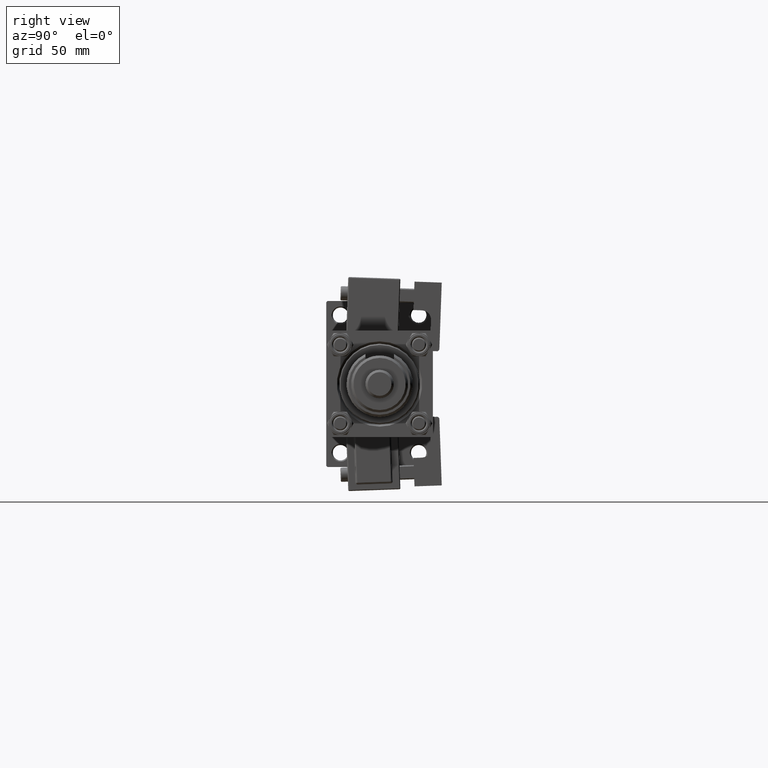
[diagram: clean part render]
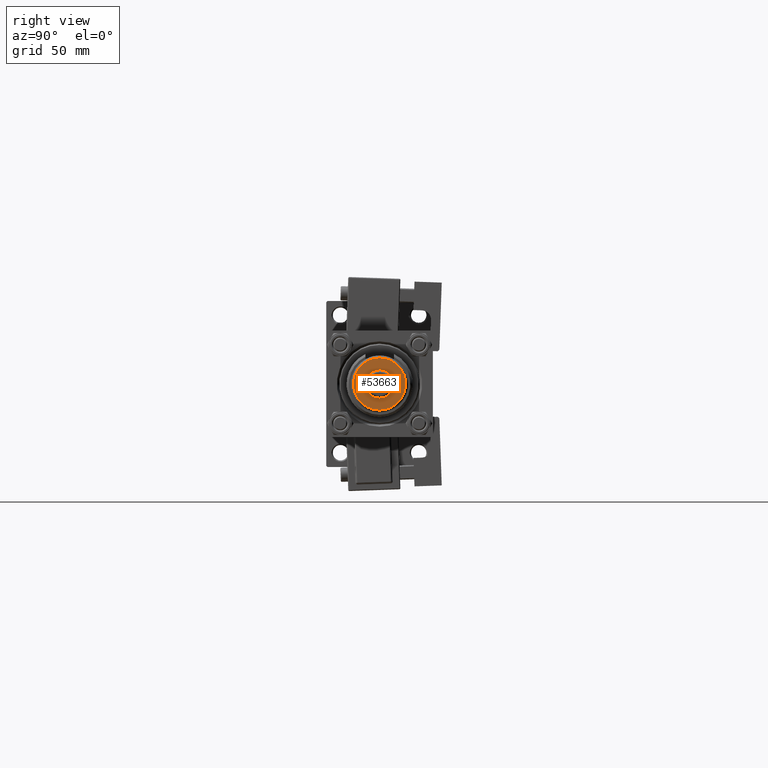
[diagram: same view with one face highlighted and labeled with its STEP entity id]
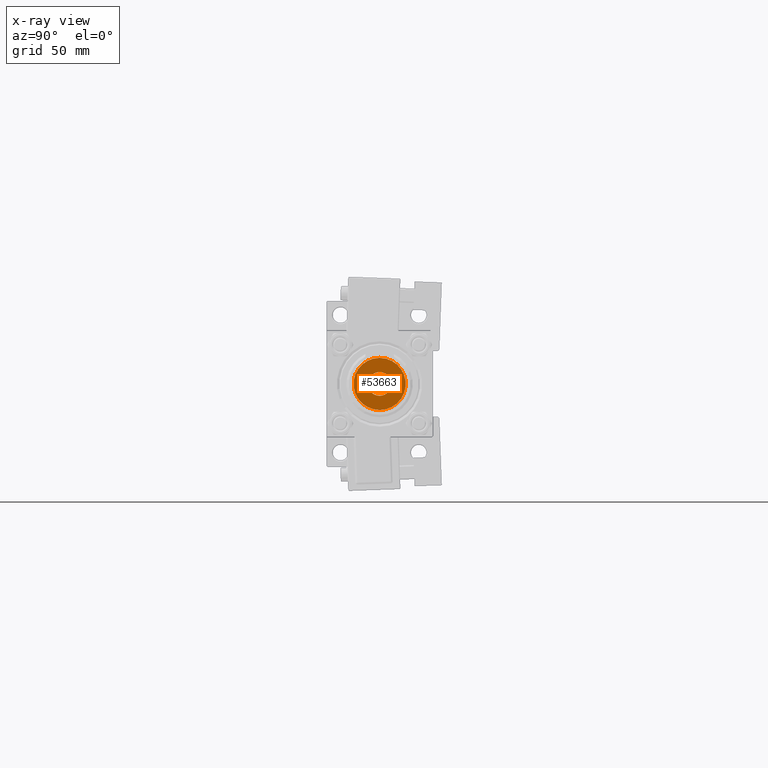
[diagram: x-ray of the same camera — body ghosted, the highlighted face saturated]
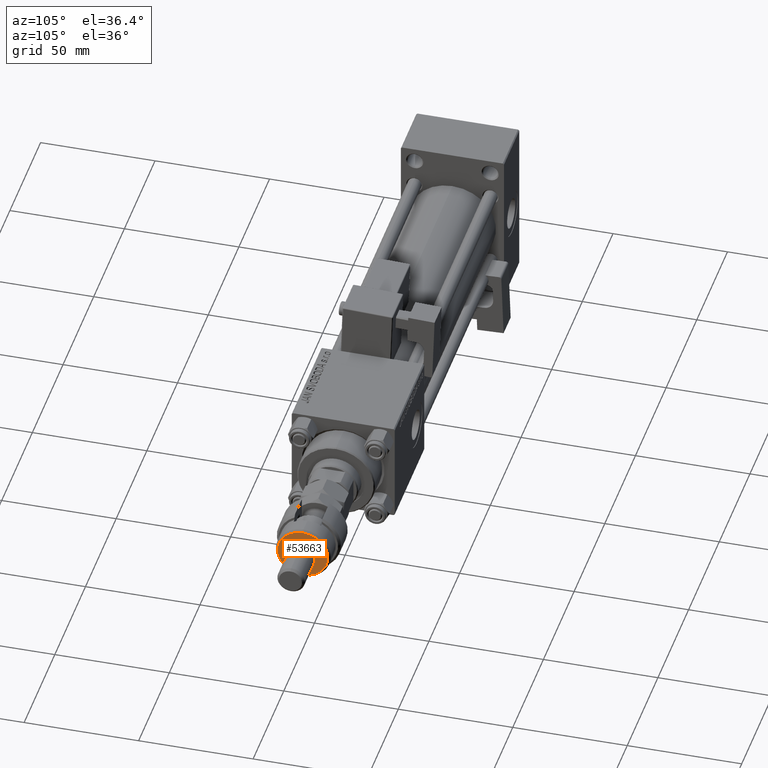
[diagram: same view with one face highlighted and labeled with its STEP entity id]
A machine part, right view. The second image highlights one B-rep face of the part: STEP entity #53663.
The next image is the same camera in x-ray: the body ghosted, the highlighted face saturated — about 0% of this face is hidden behind the body in this view.
A second angle (auxiliary view) of the same face is appended — the face is thin or edge-on in the first view.
In plain terms, the highlighted planar face has unit normal (1, 0, 0).
Its self-contained STEP definition (entity closure, byte-faithful):
#763 = EDGE_LOOP ( 'NONE', ( #34155, #38771 ) ) ;
#5016 = AXIS2_PLACEMENT_3D ( 'NONE', #46194, #8051, #16666 ) ;
#7551 = EDGE_CURVE ( 'NONE', #46699, #38493, #9424, .T. ) ;
#7610 = ORIENTED_EDGE ( 'NONE', *, *, #7551, .F. ) ;
#7697 = AXIS2_PLACEMENT_3D ( 'NONE', #21010, #46609, #24907 ) ;
#7870 = DIRECTION ( 'NONE',  ( 0.000000000000000000, 0.000000000000000000, 1.000000000000000000 ) ) ;
#8051 = DIRECTION ( 'NONE',  ( 0.000000000000000000, 0.000000000000000000, 1.000000000000000000 ) ) ;
#9424 = CIRCLE ( 'NONE', #25379, 5.000000000000000000 ) ;
#9456 = PLANE ( 'NONE',  #16163 ) ;
#9773 = EDGE_CURVE ( 'NONE', #45312, #25025, #19250, .T. ) ;
#10009 = CARTESIAN_POINT ( 'NONE',  ( -10.99999999999999645, 0.000000000000000000, 22.00000000000000000 ) ) ;
#16163 = AXIS2_PLACEMENT_3D ( 'NONE', #29301, #7870, #43408 ) ;
#16666 = DIRECTION ( 'NONE',  ( 1.000000000000000000, 0.000000000000000000, 0.000000000000000000 ) ) ;
#18561 = DIRECTION ( 'NONE',  ( 0.000000000000000000, 0.000000000000000000, 1.000000000000000000 ) ) ;
#19250 = CIRCLE ( 'NONE', #7697, 10.99999999999999645 ) ;
#20090 = CIRCLE ( 'NONE', #5016, 5.000000000000000000 ) ;
#21010 = CARTESIAN_POINT ( 'NONE',  ( 0.000000000000000000, 0.000000000000000000, 22.00000000000000000 ) ) ;
#24907 = DIRECTION ( 'NONE',  ( 1.000000000000000000, 0.000000000000000000, 0.000000000000000000 ) ) ;
#24914 = CIRCLE ( 'NONE', #54246, 10.99999999999999645 ) ;
#25025 = VERTEX_POINT ( 'NONE', #34176 ) ;
#25379 = AXIS2_PLACEMENT_3D ( 'NONE', #46059, #32672, #34256 ) ;
#27322 = EDGE_LOOP ( 'NONE', ( #35526, #7610 ) ) ;
#28567 = CARTESIAN_POINT ( 'NONE',  ( 5.000000000000000000, 6.123233995736766282E-16, 22.00000000000000000 ) ) ;
#29301 = CARTESIAN_POINT ( 'NONE',  ( 0.000000000000000000, 0.000000000000000000, 22.00000000000000000 ) ) ;
#32672 = DIRECTION ( 'NONE',  ( 0.000000000000000000, 0.000000000000000000, 1.000000000000000000 ) ) ;
#32859 = EDGE_CURVE ( 'NONE', #38493, #46699, #20090, .T. ) ;
#34155 = ORIENTED_EDGE ( 'NONE', *, *, #9773, .T. ) ;
#34176 = CARTESIAN_POINT ( 'NONE',  ( 10.99999999999999645, 1.408343819019456176E-15, 22.00000000000000000 ) ) ;
#34256 = DIRECTION ( 'NONE',  ( 1.000000000000000000, 0.000000000000000000, 0.000000000000000000 ) ) ;
#35526 = ORIENTED_EDGE ( 'NONE', *, *, #32859, .F. ) ;
#37036 = CARTESIAN_POINT ( 'NONE',  ( -5.000000000000000000, 0.000000000000000000, 22.00000000000000000 ) ) ;
#38493 = VERTEX_POINT ( 'NONE', #37036 ) ;
#38771 = ORIENTED_EDGE ( 'NONE', *, *, #44719, .T. ) ;
#39713 = CARTESIAN_POINT ( 'NONE',  ( 0.000000000000000000, 0.000000000000000000, 22.00000000000000000 ) ) ;
#43408 = DIRECTION ( 'NONE',  ( 1.000000000000000000, 0.000000000000000000, -0.000000000000000000 ) ) ;
#44719 = EDGE_CURVE ( 'NONE', #25025, #45312, #24914, .T. ) ;
#45312 = VERTEX_POINT ( 'NONE', #10009 ) ;
#46012 = FACE_OUTER_BOUND ( 'NONE', #763, .T. ) ;
#46059 = CARTESIAN_POINT ( 'NONE',  ( 0.000000000000000000, 0.000000000000000000, 22.00000000000000000 ) ) ;
#46194 = CARTESIAN_POINT ( 'NONE',  ( 0.000000000000000000, 0.000000000000000000, 22.00000000000000000 ) ) ;
#46609 = DIRECTION ( 'NONE',  ( 0.000000000000000000, 0.000000000000000000, 1.000000000000000000 ) ) ;
#46699 = VERTEX_POINT ( 'NONE', #28567 ) ;
#46827 = FACE_BOUND ( 'NONE', #27322, .T. ) ;
#51713 = DIRECTION ( 'NONE',  ( 1.000000000000000000, 0.000000000000000000, 0.000000000000000000 ) ) ;
#53663 = ADVANCED_FACE ( 'NONE', ( #46012, #46827 ), #9456, .T. ) ;
#54246 = AXIS2_PLACEMENT_3D ( 'NONE', #39713, #18561, #51713 ) ;